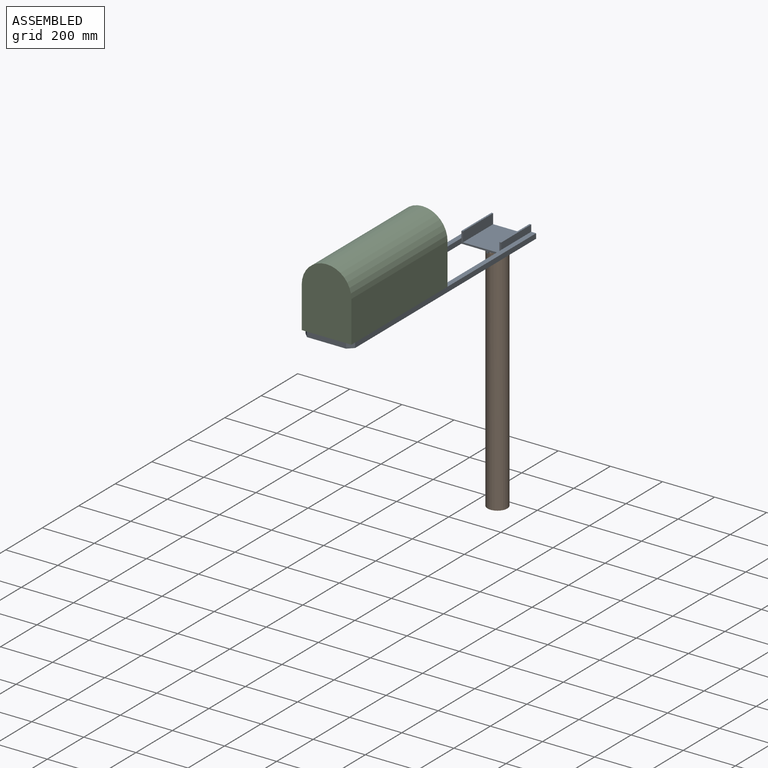
[diagram: assembled view]
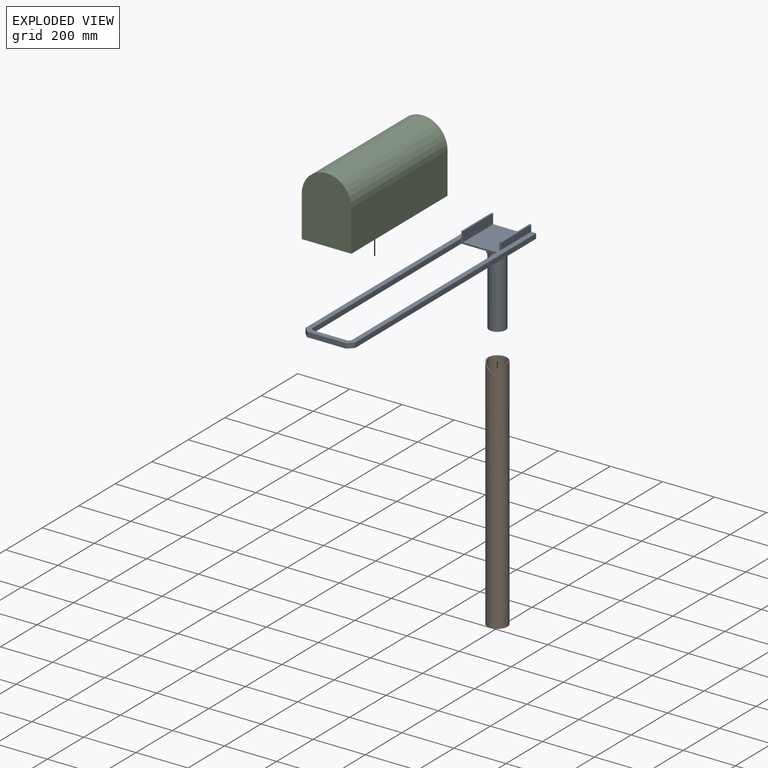
[diagram: exploded view]
GUIDED TOUR — MATED ASSEMBLY (Onshape document 84b5ca46ec49814ace46b5ad, AutoMate assembly 84b5ca46ec49814ace46b5ad_801b1fc366ce7f7b86d8021f_22274d3a6b695e5d256e9bb5_default)

This assembly has 3 components, labeled P0..P2 below (a component is one placed occurrence of a part; the same part can appear more than once), held together by 4 mates. A mate is a constraint between two components; its type names the relative motion it leaves free:
  CYLINDRICAL — leaves both rotation about and translation along the listed axis free,
  PLANAR — leaves sliding in the plane through the listed point (normal = the listed direction) and rotation about that normal free.
Axis/direction vectors are unit vectors and 'through' points are millimeter coordinates, both in the assembly's world frame.

MATES
  1. PLANAR "Planar 3": P0 <-> P2, direction (-1.000, 0.000, 0.000) through (-84.04, -425.88, 959.71) mm
  2. PLANAR "Planar 1": P2 <-> P0, direction (0.000, -1.000, 0.000) through (11.21, -942.47, 1086.99) mm
  3. PLANAR "Planar 2": P0 <-> P2, direction (0.000, 0.000, 1.000) through (11.21, -467.07, 969.24) mm
  4. CYLINDRICAL "Cylindrical 1": P0 <-> P1, axis (0.000, 0.000, 1.000) through (11.21, -5.85, 950.19) mm

ASSEMBLY ORDER
  1. P0 — the base component [order verified]
  2. P1 [order verified]
  3. P2 [order verified]
Order-tag legend:
  [order verified] — this step's position reverses a verified removal order: the component was checked to insert without passing through the ones already placed.

Of the 3 components, 1 carries the full construction recipe — the FeatureScript program that regenerates the part's solid from scratch; the rest are supplied as boundary geometry only.
Each toured component is shown spotlighted twice — in the assembled view, then in the exploded view, where a leader line traces a displaced component back to its assembled socket (saturated green if recipe-attached, orange if geometry-only; every other component desaturated gray) — followed by its recipe or geometry summary and the mates that hold it.
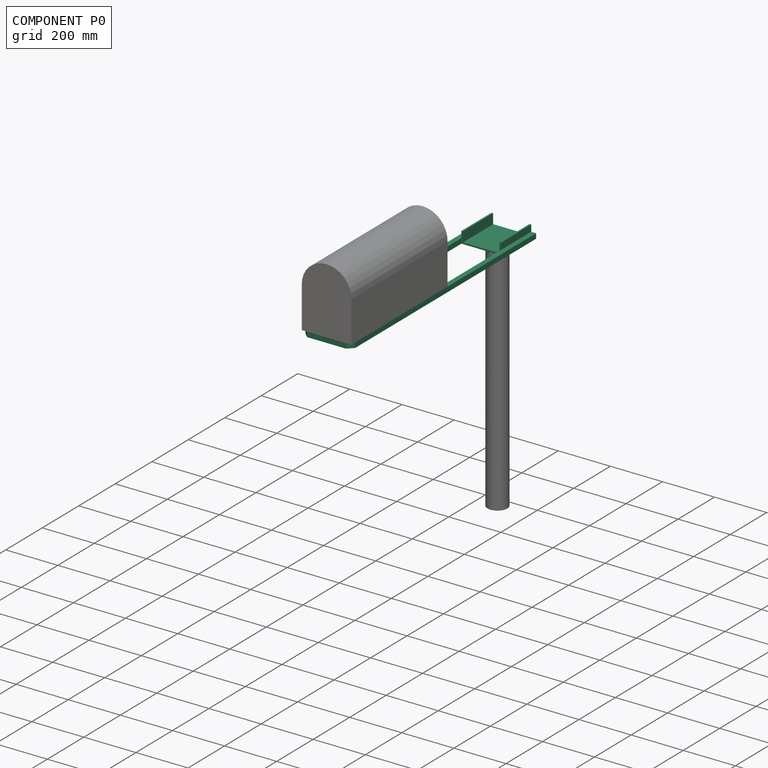
[diagram: component P0 — assembled]
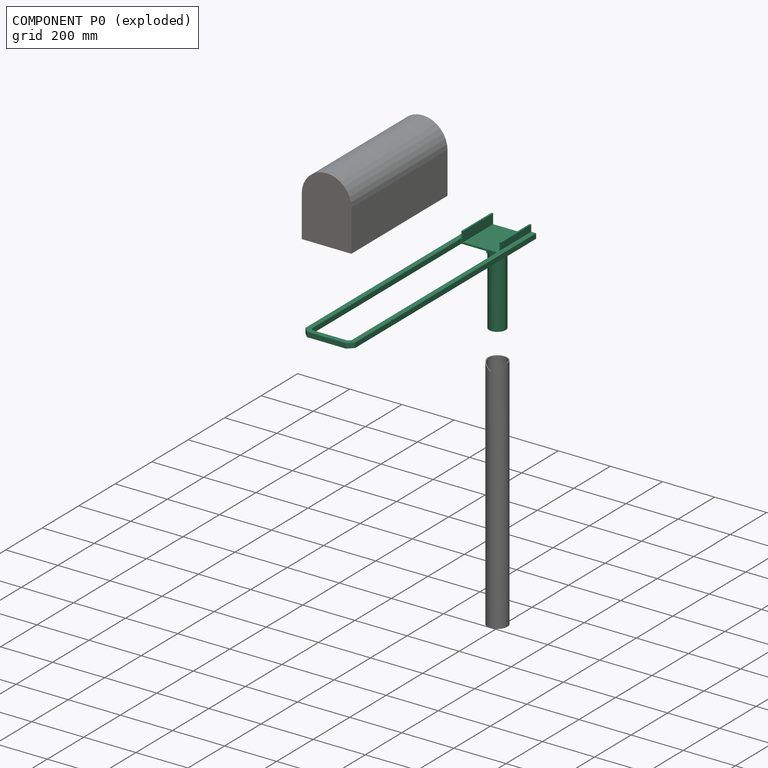
[diagram: component P0 — exploded]
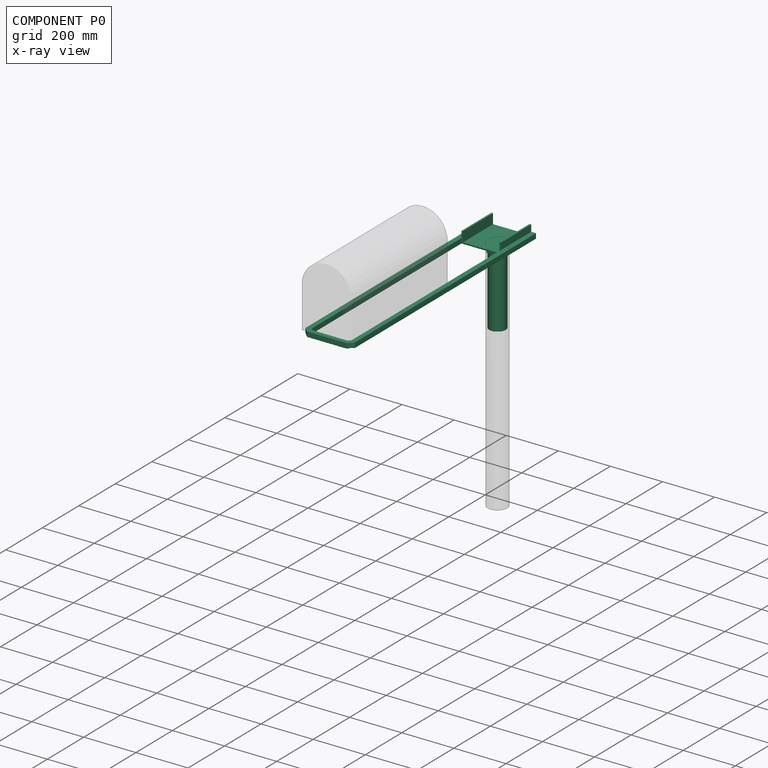
[diagram: component P0 — x-ray view]
COMPONENT P0 — recipe-attached (CADFS 00907759, mesh-verified: the recipe's output STEP matches this component's geometry to below the mesh-comparison resolution (tessellation chordal tolerance ~1.63 mm)).
Held by: PLANAR mate "Planar 3" to P2; PLANAR mate "Planar 1" to P2; PLANAR mate "Planar 2" to P2; CYLINDRICAL mate "Cylindrical 1" to P1.
Construction recipe (FeatureScript — the CAD program that rebuilds this solid; sketch coordinates are in the units given by the * unit suffixes, e.g. mm):

FeatureScript 1511;
import(path : "onshape/std/geometry.fs", version : "1511.0");
import(path : "onshape/std/common.fs", version : "1511.0");
const mm = millimeter;
const VERTEX = EntityType.VERTEX;
const EDGE = EntityType.EDGE;
const FACE = EntityType.FACE;
const BODY = EntityType.BODY;
function v(x, y){return vector(x, y);}
function OD(order){return orderDisambiguation(order);}
function OSD(set){return originalSetDisambiguation(set);}
function TD(topology){return topologyDisambiguation(topology);}
function TDD(query){return trueDependencyDisambiguation(query);}
function sQuery(a, b, c) {return sketchEntityQuery(a, b, c);}

annotation { "Feature Type Name" : "Feature", "Feature Type Description" : "" }
export const myFeature = defineFeature(function(context is Context, id is Id, definition is map)
    precondition{}
    {
        {
            var Q0;
            Q0=qCreatedBy(makeId("Top.planeOp"),FACE);
            var sketch = newSketch(context, id + "F0", { "sketchPlane" : qUnion([Q0])});
            skCircle(sketch, "E0", {"center": v(0, 0) * mm, "radius": 31.75 * mm});
            skCircle(sketch, "E1", {"center": v(0, 0) * mm, "radius": 28.57 * mm});
            skSolve(sketch);
        }
        {
            var Q0;
            Q0=makeQuery(id+"F0.imprint","IMPRINT",FACE,{"disambiguationData":[TD([[makeQuery(id+"F0.imprint","IMPRINT",EDGE,{"derivedFrom":sQuery(id+"F0.wireOp",EDGE,"E0")}),1.0]])]});
            extrude(context, id + "F1", {"entities" : qUnion([Q0]), "oppositeDirection" : true, "depth" : 304.8 * mm, "offsetDistance" : 25.4 * mm});
        }
        {
            var Q0;
            Q0=qCreatedBy(makeId("Top.planeOp"),FACE);
            var sketch = newSketch(context, id + "F2", { "sketchPlane" : qUnion([Q0])});
            skLineSegment(sketch, "E2.bottom", {"start": v(-3.18, -28.58) * mm, "end": v(3.18, -28.58) * mm});
            skLineSegment(sketch, "E2.top", {"start": v(-3.18, -57.15) * mm, "end": v(3.18, -57.15) * mm});
            skLineSegment(sketch, "E2.left", {"start": v(-3.18, -28.58) * mm, "end": v(-3.18, -57.15) * mm});
            skLineSegment(sketch, "E2.right", {"start": v(3.17, -28.58) * mm, "end": v(3.17, -57.15) * mm});
            skSolve(sketch);
        }
        {
            var Q0;
            Q0=makeQuery(id+"F2.imprint","IMPRINT",FACE,{"disambiguationData":[TD([[makeQuery(id+"F2.imprint","IMPRINT",EDGE,{"derivedFrom":sQuery(id+"F2.wireOp",EDGE,"E2.bottom")}),-1.0]])]});
            extrude(context, id + "F3", {"entities" : qUnion([Q0]), "operationType" : NewBodyOperationType.ADD, "oppositeDirection" : true, "depth" : 25.4 * mm, "offsetDistance" : 25.4 * mm});
        }
        {
            var Q0;
            Q0=qCreatedBy(makeId("Front.planeOp"),FACE);
            cPlane(context, id + "F4", {"entities" : qUnion([Q0]), "cplaneType" : CPlaneType.OFFSET, "offset" : 76.2 * mm, "oppositeDirection" : true, "width" : 152.4 * mm, "height" : 152.4 * mm});
        }
        {
            var Q0;
            Q0=qCreatedBy(id+"F4.planeOp",FACE);
            var sketch = newSketch(context, id + "F5", { "sketchPlane" : qUnion([Q0])});
            skLineSegment(sketch, "E3", {"start": v(76.2, 0) * mm, "end": v(76.2, 44.45) * mm});
            skLineSegment(sketch, "E4", {"start": v(69.85, 44.45) * mm, "end": v(69.85, 6.35) * mm});
            skLineSegment(sketch, "E5", {"start": v(69.85, 6.35) * mm, "end": v(-69.85, 6.35) * mm});
            skLineSegment(sketch, "E6", {"start": v(-69.85, 6.35) * mm, "end": v(-69.85, 44.45) * mm});
            skLineSegment(sketch, "E7", {"start": v(-76.2, 44.45) * mm, "end": v(-76.2, 0) * mm});
            skLineSegment(sketch, "E8", {"start": v(-76.2, 0) * mm, "end": v(76.2, 0) * mm});
            skLineSegment(sketch, "E9", {"start": v(-76.2, 44.45) * mm, "end": v(-69.85, 44.45) * mm});
            skLineSegment(sketch, "E10", {"start": v(69.85, 44.45) * mm, "end": v(76.2, 44.45) * mm});
            skSolve(sketch);
        }
        {
            var Q0;
            Q0=makeQuery(id+"F5.imprint","IMPRINT",FACE,{"disambiguationData":[TD([[makeQuery(id+"F5.imprint","IMPRINT",EDGE,{"derivedFrom":sQuery(id+"F5.wireOp",EDGE,"E3")}),1.0]])]});
            var Q1;
            Q1 = qSketchRegion(id + "F7", true);
            var Q2;
            Q2 = qSketchRegion(id + "F8", true);
            extrude(context, id + "F6", {"entities" : qUnion([Q0, Q1, Q2]), "operationType" : NewBodyOperationType.ADD, "depth" : 165.1 * mm, "offsetDistance" : 25.4 * mm});
        }
        {
            var Q0;
            Q0=qCreatedBy(id+"F4.planeOp",FACE);
            var sketch = newSketch(context, id + "F7", { "sketchPlane" : qUnion([Q0])});
            skLineSegment(sketch, "E11.bottom", {"start": v(76.2, 0) * mm, "end": v(95.25, 0) * mm});
            skLineSegment(sketch, "E11.top", {"start": v(76.2, 19.05) * mm, "end": v(95.25, 19.05) * mm});
            skLineSegment(sketch, "E11.left", {"start": v(76.2, 0) * mm, "end": v(76.2, 19.05) * mm});
            skLineSegment(sketch, "E11.right", {"start": v(95.25, 0) * mm, "end": v(95.25, 19.05) * mm});
            skLineSegment(sketch, "E12.bottom", {"start": v(79.38, 3.18) * mm, "end": v(92.08, 3.18) * mm});
            skLineSegment(sketch, "E12.top", {"start": v(79.38, 15.88) * mm, "end": v(92.08, 15.88) * mm});
            skLineSegment(sketch, "E12.left", {"start": v(79.38, 3.18) * mm, "end": v(79.38, 15.88) * mm});
            skLineSegment(sketch, "E12.right", {"start": v(92.08, 3.17) * mm, "end": v(92.08, 15.88) * mm});
            skSolve(sketch);
        }
        {
            var Q0;
            Q0=makeQuery(id+"F6.opExtrude","SWEPT_FACE",FACE,{"disambiguationData":[OSD([sQuery(id+"F5.wireOp",EDGE,"E5")])]});
            var sketch = newSketch(context, id + "F8", { "sketchPlane" : qUnion([Q0])});
            skLineSegment(sketch, "E13", {"start": v(98.42, 76.2) * mm, "end": v(98.43, -917.57) * mm});
            skLineSegment(sketch, "E14", {"start": v(-98.43, 76.2) * mm, "end": v(-98.42, -917.57) * mm});
            skLineSegment(sketch, "E15", {"start": v(-98.43, -917.57) * mm, "end": v(-76.2, -939.8) * mm});
            skLineSegment(sketch, "E16", {"start": v(-76.2, -939.8) * mm, "end": v(76.2, -939.8) * mm});
            skLineSegment(sketch, "E17", {"start": v(76.2, -939.8) * mm, "end": v(98.43, -917.57) * mm});
            skSolve(sketch);
        }
        {
            var Q0;
            Q0=makeQuery(id+"F7.imprint","IMPRINT",FACE,{"disambiguationData":[TD([[makeQuery(id+"F7.imprint","IMPRINT",EDGE,{"derivedFrom":sQuery(id+"F7.wireOp",EDGE,"E11.bottom")}),1.0]])]});
            var Q1;
            Q1=sQuery(id+"F8.wireOp",EDGE,"E13");
            var Q2;
            Q2=sQuery(id+"F8.wireOp",EDGE,"E17");
            var Q3;
            Q3=sQuery(id+"F8.wireOp",EDGE,"E16");
            var Q4;
            Q4=sQuery(id+"F8.wireOp",EDGE,"E15");
            var Q5;
            Q5=sQuery(id+"F8.wireOp",EDGE,"E14");
            sweep(context, id + "F9", {"operationType" : NewBodyOperationType.ADD, "profiles" : qUnion([Q0]), "path" : qUnion([Q1, Q2, Q3, Q4, Q5])});
        }
    });
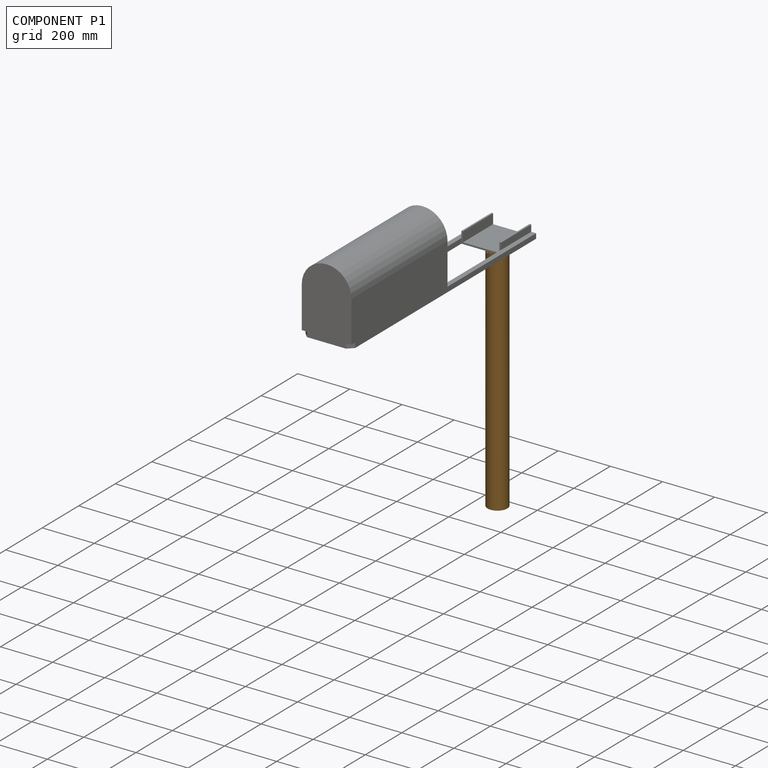
[diagram: component P1 — assembled]
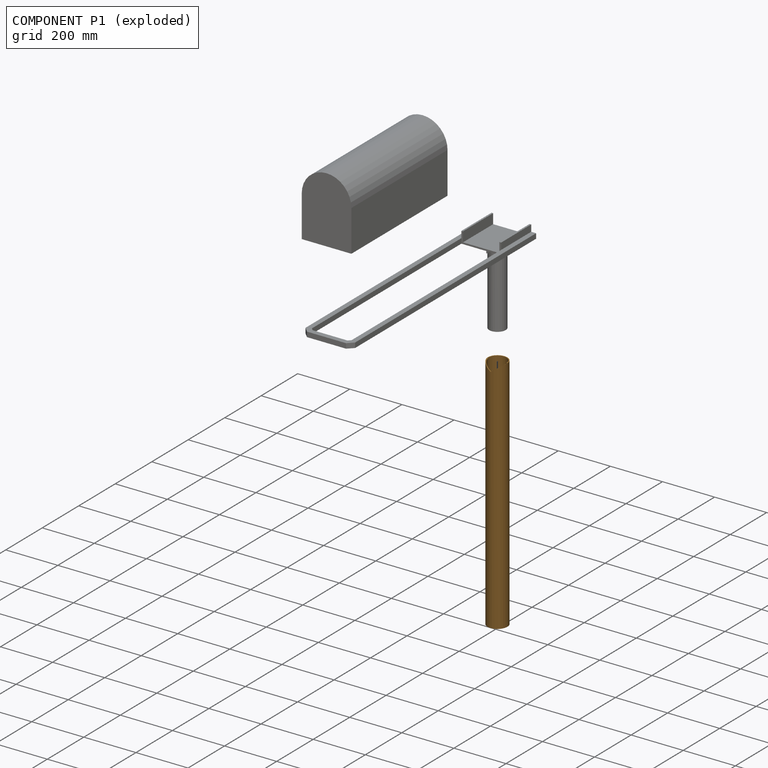
[diagram: component P1 — exploded]
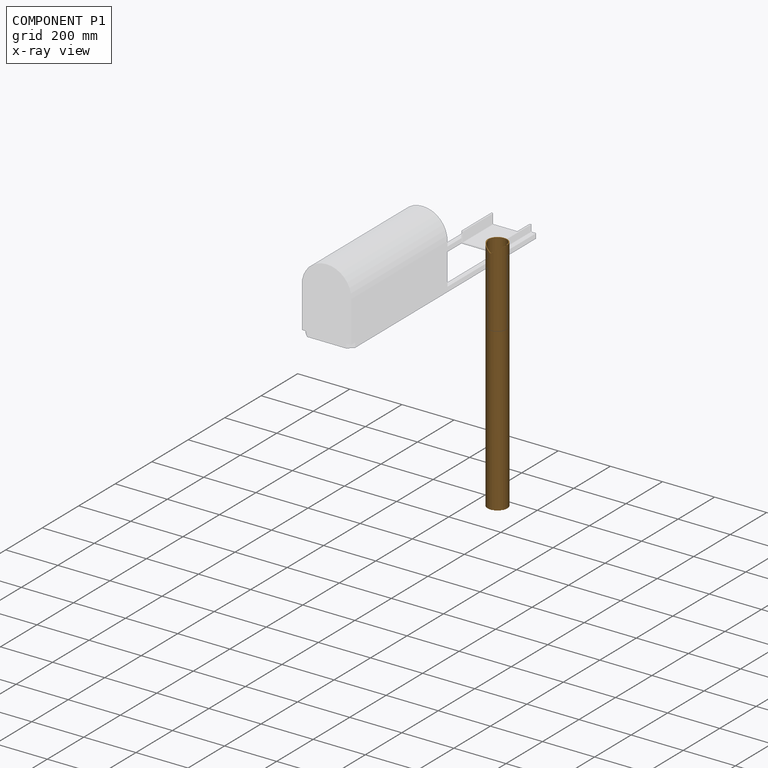
[diagram: component P1 — x-ray view]
COMPONENT P1 — geometry summary (no construction recipe available for this part):
  bounding box: 914.4 x 76.2 x 76.2 mm
  B-rep topology: 1 solid, 8 faces, 34 edges
  volume: 662438 mm^3 (12% of its bounding box)
  symmetry: 2-fold rotationally symmetric about the y axis; revolution-symmetric about the z axis through its bounding-box center; mirror-symmetric across its x mid-plane, z mid-plane
Held by: CYLINDRICAL mate "Cylindrical 1" to P0.
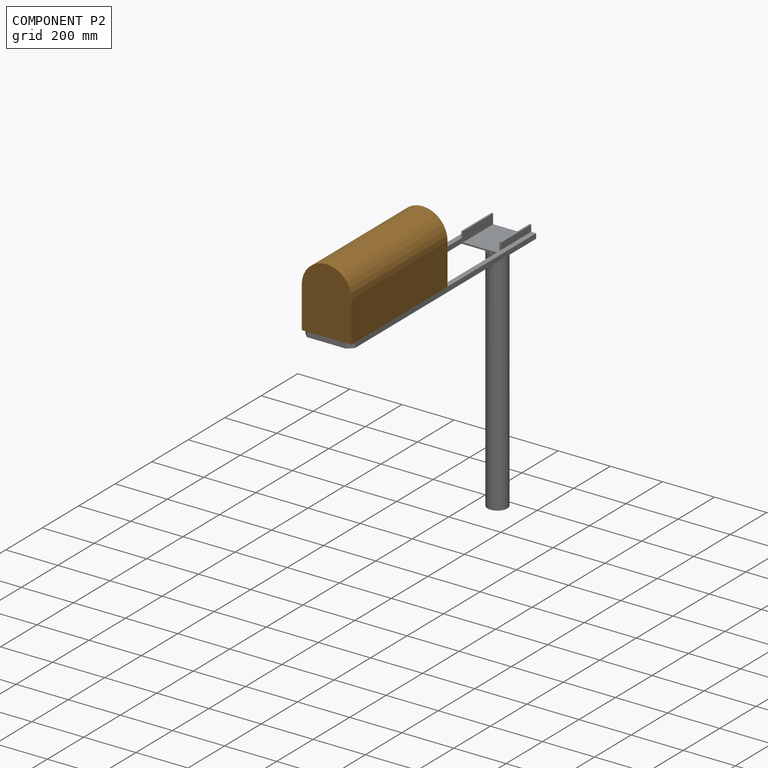
[diagram: component P2 — assembled]
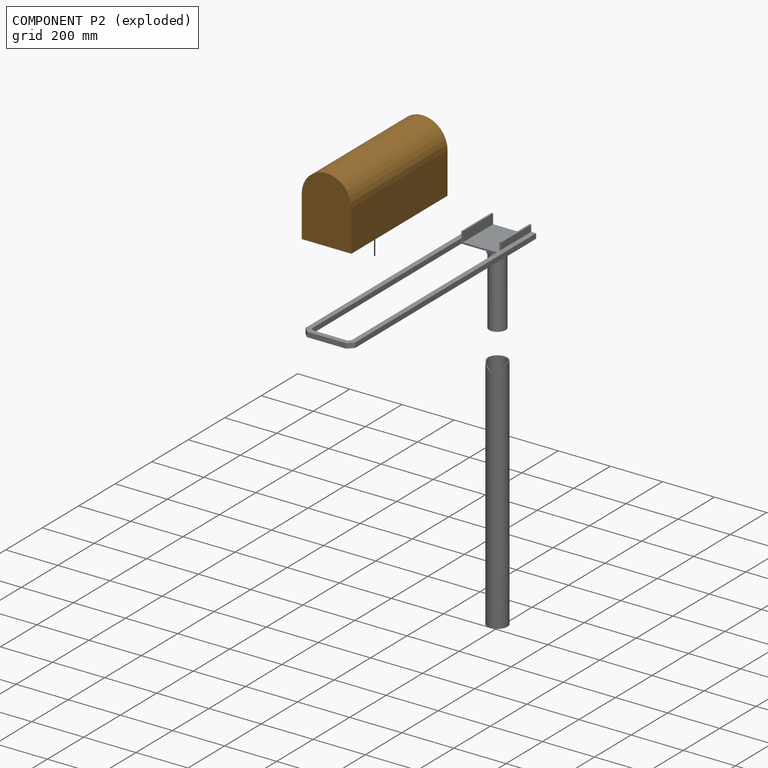
[diagram: component P2 — exploded]
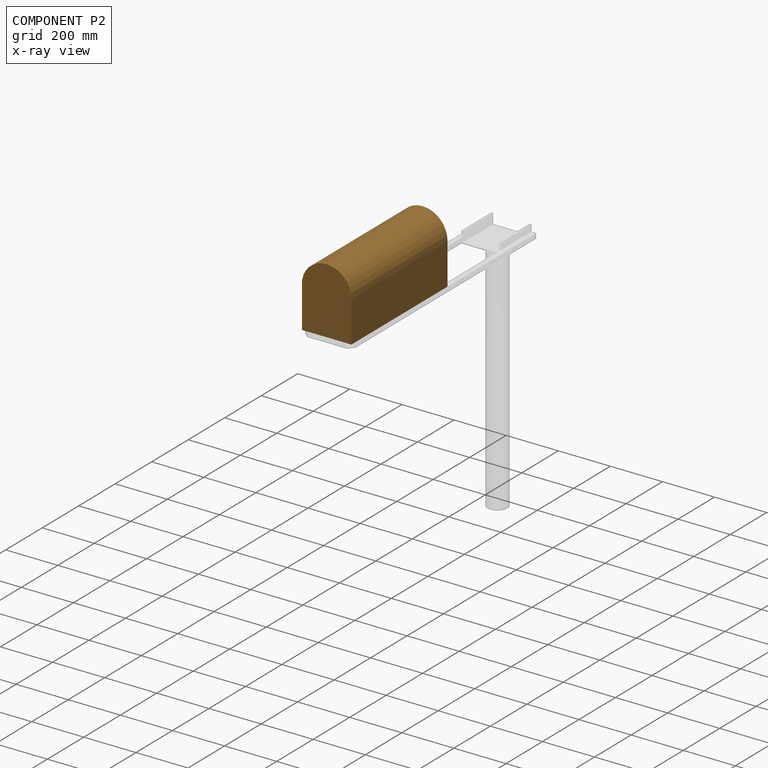
[diagram: component P2 — x-ray view]
COMPONENT P2 — geometry summary (no construction recipe available for this part):
  bounding box: 527.1 x 254.0 x 190.5 mm
  B-rep topology: 1 solid, 6 faces, 24 edges
  volume: 23450048 mm^3 (92% of its bounding box)
  symmetry: 2-fold rotationally symmetric about the z axis; mirror-symmetric across its x mid-plane, y mid-plane
Held by: PLANAR mate "Planar 3" to P0; PLANAR mate "Planar 1" to P0; PLANAR mate "Planar 2" to P0.
PROVENANCE & LICENSES
Assembly (occurrences, transforms, mates, per-part STEP geometry): AutoMate dataset, Zenodo record 7776208, CC0.
Construction recipes: CADFS (HuggingFace VladPyatov/CADFS, CC-BY-4.0, layered over the ABC dataset), FeatureScript reconstruction programs keyed by ABC model id.
Join: ABC meta listings map ABC model id -> Onshape documentId; within a shared document, parts are matched by geometric signature (bounding-box dims + volume at 0.1% relative tolerance, exact B-rep face/solid counts).
Verification: 1 of this assembly's 3 components carries a recipe attachment, and every attachment is mesh-verified: the CADFS STEP and the AutoMate member STEP were compared as meshes in their shared local frame (symmetric sampled-point-to-mesh distance); worst across the 1 attachment: below the mesh-comparison resolution (tessellation chordal tolerance ~1.63 mm) on a 1088 mm part.
Renders: orthographic iso camera (az 35 / el 25); the floor grid conveys scale (grid pitch printed in each image; no ruler). In the exploded view each component is displaced by its stored offset vector: the offsets alone carry the explosion direction (mate normal/axis signs are not orientation cues and do not encode it), and separation distances are assigned per mate-chain, not proportionally to assembly-order depth.
